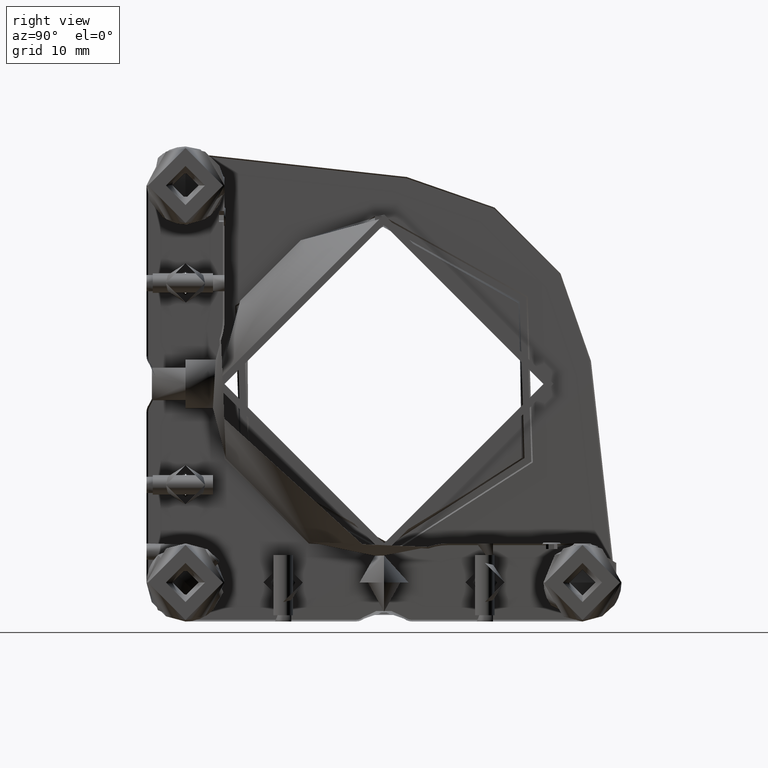
[diagram: clean part render]
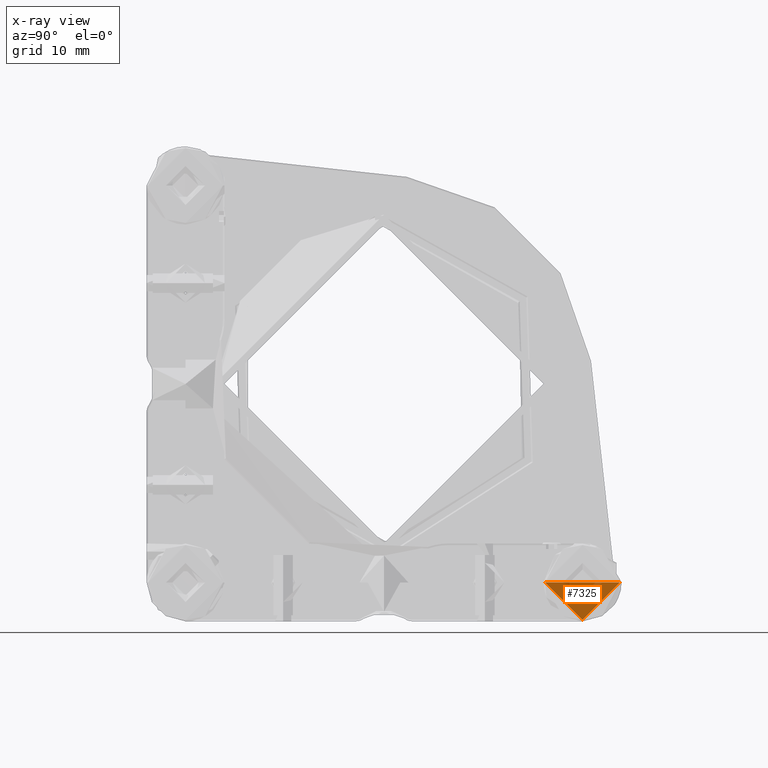
[diagram: x-ray — body ghosted, one internal face saturated and labeled with its STEP entity id]
A machine part, right view, then the same camera in x-ray: the body is ghosted and one INTERNAL B-rep face — a face not visible from any outside direction — is saturated and labeled: STEP entity #7325.
In plain terms, the highlighted planar face has unit normal (1, 0, 0).
Its self-contained STEP definition (entity closure, byte-faithful):
#150 = FACE_BOUND ( 'NONE', #18268, .T. ) ;
#166 = CARTESIAN_POINT ( 'NONE',  ( 14.52438067708581038, 33.91941970976437659, 22.71200231766244571 ) ) ;
#651 = CARTESIAN_POINT ( 'NONE',  ( 14.52438067708581215, 33.41266510792383571, 19.12536100015678997 ) ) ;
#751 = CARTESIAN_POINT ( 'NONE',  ( 14.52438067708581748, 25.98998986151763901, 17.83405550010431284 ) ) ;
#851 = CARTESIAN_POINT ( 'NONE',  ( 14.52438067708581393, 27.46949630681223553, 16.96269565801405577 ) ) ;
#946 = CARTESIAN_POINT ( 'NONE',  ( 14.52438067708581393, 24.33292862304676873, 21.50000000000000000 ) ) ;
#1010 = CARTESIAN_POINT ( 'NONE',  ( 14.52438067708581215, 25.51698412314998521, 24.69293876152804401 ) ) ;
#1049 = CARTESIAN_POINT ( 'NONE',  ( 14.52438067708581571, 26.24899507208490945, 17.62356381639167324 ) ) ;
#1213 = CARTESIAN_POINT ( 'NONE',  ( 14.52438067708581393, 24.33292862304676873, 21.50000000000000000 ) ) ;
#1423 = CARTESIAN_POINT ( 'NONE',  ( 14.52438067708581571, 25.30649243943227944, 24.43393355095571096 ) ) ;
#1454 = CARTESIAN_POINT ( 'NONE',  ( 14.52438067701677760, 30.68797895811347232, 27.10034289084593340 ) ) ;
#1640 = CARTESIAN_POINT ( 'NONE',  ( 14.52438067708581748, 30.71599245725489169, 26.10261184327362827 ) ) ;
#1698 = CARTESIAN_POINT ( 'NONE',  ( 14.52438067708581393, 34.03292862304677868, 21.50000000000000000 ) ) ;
#1768 = CARTESIAN_POINT ( 'NONE',  ( 14.52438067701677582, 34.93292862304997470, 22.25267323992297719 ) ) ;
#1943 = CARTESIAN_POINT ( 'NONE',  ( 14.52438067708581393, 33.63794655343524909, 23.41788744848536297 ) ) ;
#2314 = CARTESIAN_POINT ( 'NONE',  ( 14.52438067708580860, 26.80828962319709063, 17.27026351512473212 ) ) ;
#2411 = CARTESIAN_POINT ( 'NONE',  ( 14.52438067704439284, 23.43292862304367574, 21.50000000000000355 ) ) ;
#2417 = CARTESIAN_POINT ( 'NONE',  ( 14.52438067708581393, 31.23174659883637005, 17.10263060999756135 ) ) ;
#2517 = CARTESIAN_POINT ( 'NONE',  ( 14.52438067708581571, 27.02267360925661066, 17.15221773601624022 ) ) ;
#2618 = CARTESIAN_POINT ( 'NONE',  ( 14.52438067708582103, 24.33292862304677584, 20.88308412948451220 ) ) ;
#2789 = CARTESIAN_POINT ( 'NONE',  ( 14.52438067708581571, 27.13411064725692157, 25.89736939000365368 ) ) ;
#2843 = VERTEX_POINT ( 'NONE', #1698 ) ;
#2888 = CARTESIAN_POINT ( 'NONE',  ( 14.52438067708581571, 24.83514635906360368, 23.66025501378826590 ) ) ;
#2992 = CARTESIAN_POINT ( 'NONE',  ( 14.52438067708581393, 24.33292862304676873, 21.50000000000000000 ) ) ;
#3203 = CARTESIAN_POINT ( 'NONE',  ( 14.52438067708581215, 27.32169990835435058, 25.97869805857441960 ) ) ;
#3306 = CARTESIAN_POINT ( 'NONE',  ( 14.52438067708581393, 33.33196189190774561, 24.01694300821505124 ) ) ;
#3385 = DIRECTION ( 'NONE',  ( 1.224059984637268215E-16, 0.000000000000000000, -1.000000000000000000 ) ) ;
#3405 = CARTESIAN_POINT ( 'NONE',  ( 14.52438067708581748, 31.69862827721949117, 25.64734961785286771 ) ) ;
#3503 = CARTESIAN_POINT ( 'NONE',  ( 14.52438067708581393, 30.93230565649533048, 26.02355517262649443 ) ) ;
#3775 = CARTESIAN_POINT ( 'NONE',  ( 14.52438067708581571, 33.63215310187160156, 19.56250798600264673 ) ) ;
#3814 = CARTESIAN_POINT ( 'NONE',  ( 14.52438067701678293, 24.58484427925467131, 17.96635636014227799 ) ) ;
#3914 = CARTESIAN_POINT ( 'NONE',  ( 14.52438067701678470, 30.68797895811347587, 15.89965710915406483 ) ) ;
#3978 = CARTESIAN_POINT ( 'NONE',  ( 14.52438067708580860, 31.04415733773910446, 17.02130194142601027 ) ) ;
#4018 = CARTESIAN_POINT ( 'NONE',  ( 14.52438067701677937, 33.78101296683886545, 17.96635636014227089 ) ) ;
#4078 = CARTESIAN_POINT ( 'NONE',  ( 14.52438067708581215, 25.16830291336528447, 18.77752054822410344 ) ) ;
#4146 = CARTESIAN_POINT ( 'NONE',  ( 14.52438067708581571, 25.03557900519275137, 24.01569965417096952 ) ) ;
#4185 = CARTESIAN_POINT ( 'NONE',  ( 14.52438067708580860, 33.05936480666957067, 18.56606644905475889 ) ) ;
#4289 = CARTESIAN_POINT ( 'NONE',  ( 14.52438067708581393, 25.21688150693000807, 18.70714728069470922 ) ) ;
#4355 = CARTESIAN_POINT ( 'NONE',  ( 14.52438067708581393, 26.05731534214589118, 25.21517591766009758 ) ) ;
#4463 = CARTESIAN_POINT ( 'NONE',  ( 14.52438067708581393, 24.66592426522777970, 23.26623025729685068 ) ) ;
#4485 = CARTESIAN_POINT ( 'NONE',  ( 14.52438067701678115, 23.43292862304356561, 22.25267323992298074 ) ) ;
#4645 = CARTESIAN_POINT ( 'NONE',  ( 14.52438067708581393, 29.18292862304677016, 21.50000000000000000 ) ) ;
#4664 = CARTESIAN_POINT ( 'NONE',  ( 14.52438067708581393, 31.12042063704975448, 25.94922447882184358 ) ) ;
#4706 = CARTESIAN_POINT ( 'NONE',  ( 14.52438067704439284, 34.93292862304869573, 21.50000000000000000 ) ) ;
#4767 = CARTESIAN_POINT ( 'NONE',  ( 14.52438067708581571, 30.94915888034337570, 26.01700435781917164 ) ) ;
#4794 = CARTESIAN_POINT ( 'NONE',  ( 14.52438067701677937, 29.93560186296974734, 27.25000000000320455 ) ) ;
#4849 = PLANE ( 'NONE',  #15468 ) ;
#4967 = CARTESIAN_POINT ( 'NONE',  ( 14.52438067708581393, 33.45542130033840778, 23.80558629112001157 ) ) ;
#5071 = CARTESIAN_POINT ( 'NONE',  ( 14.52438067708581393, 33.14897573915903450, 24.29285271931071932 ) ) ;
#5339 = CARTESIAN_POINT ( 'NONE',  ( 14.52438067708581038, 33.69993298086555455, 19.73376974270269102 ) ) ;
#5446 = CARTESIAN_POINT ( 'NONE',  ( 14.52438067708580860, 33.78551466362651468, 19.96687096923859883 ) ) ;
#5540 = CARTESIAN_POINT ( 'NONE',  ( 14.52438067708581571, 32.49415820623055851, 17.95226754763083221 ) ) ;
#5642 = CARTESIAN_POINT ( 'NONE',  ( 14.52438067708581393, 31.48851491413567771, 17.22750732269203056 ) ) ;
#5811 = CARTESIAN_POINT ( 'NONE',  ( 14.52438067708581748, 26.39007590374196610, 25.46604711611724525 ) ) ;
#5848 = CARTESIAN_POINT ( 'NONE',  ( 14.52438067708581393, 27.52347579191915727, 16.94240464708864380 ) ) ;
#5950 = CARTESIAN_POINT ( 'NONE',  ( 14.52438067708581393, 27.90439024271051238, 16.81667198319536638 ) ) ;
#6040 = CARTESIAN_POINT ( 'NONE',  ( 14.52438067701677760, 26.28711948591248415, 26.52427173303979302 ) ) ;
#6052 = EDGE_CURVE ( 'NONE', #2843, #17212, #12524, .T. ) ;
#6074 = CARTESIAN_POINT ( 'NONE',  ( 14.52438067701678115, 34.93292862304998181, 20.74732676007702636 ) ) ;
#6224 = CARTESIAN_POINT ( 'NONE',  ( 14.52438067708581393, 32.89810454069694856, 24.62561328091269175 ) ) ;
#6351 = CARTESIAN_POINT ( 'NONE',  ( 14.52438067704439284, 34.93292862304869573, 21.50000000000000000 ) ) ;
#6423 = CARTESIAN_POINT ( 'NONE',  ( 14.52438067708581393, 33.68530757611942761, 23.30317362336610287 ) ) ;
#6454 = CARTESIAN_POINT ( 'NONE',  ( 14.52438067701678115, 34.78327151389271421, 23.00505033506670571 ) ) ;
#6527 = CARTESIAN_POINT ( 'NONE',  ( 14.52438067708581215, 29.94542625555357063, 26.30749313510508358 ) ) ;
#6690 = CARTESIAN_POINT ( 'NONE',  ( 14.52438067708581215, 33.70647964881172243, 19.75061248853394247 ) ) ;
#6904 = ORIENTED_EDGE ( 'NONE', *, *, #9147, .F. ) ;
#7040 = CARTESIAN_POINT ( 'NONE',  ( 14.52438067701678115, 23.58258573220083321, 19.99494966493330850 ) ) ;
#7199 = CARTESIAN_POINT ( 'NONE',  ( 14.52438067708581393, 25.31523931028752727, 18.57239128727074373 ) ) ;
#7325 = ADVANCED_FACE ( 'NONE', ( #20645, #150 ), #4849, .F. ) ;
#7408 = CARTESIAN_POINT ( 'NONE',  ( 14.52438067708581748, 24.68054966997413757, 19.69682637663321856 ) ) ;
#7896 = CARTESIAN_POINT ( 'NONE',  ( 14.52438067708580860, 27.26504117457487197, 25.95501793039633398 ) ) ;
#7983 = DIRECTION ( 'NONE',  ( 1.000000000000000000, 3.800440689669032656E-18, 1.224059984637268215E-16 ) ) ;
#8003 = CARTESIAN_POINT ( 'NONE',  ( 14.52438067708581748, 33.66162668161646820, 23.36122871470054108 ) ) ;
#8106 = CARTESIAN_POINT ( 'NONE',  ( 14.52438067708581393, 33.67718534726341062, 23.32333496981188148 ) ) ;
#8306 = CARTESIAN_POINT ( 'NONE',  ( 14.52438067708581038, 32.73066107540921621, 24.81122958319048877 ) ) ;
#8574 = CARTESIAN_POINT ( 'NONE',  ( 14.52438067708581748, 33.86621240666323729, 20.22134985413903507 ) ) ;
#8682 = CARTESIAN_POINT ( 'NONE',  ( 14.52438067708581393, 24.72791069265258912, 19.58211255152459529 ) ) ;
#8785 = CARTESIAN_POINT ( 'NONE',  ( 14.52438067708581926, 31.10081607151852623, 17.04498206960437656 ) ) ;
#8884 = EDGE_CURVE ( 'NONE', #17212, #2843, #15513, .T. ) ;
#8888 = CARTESIAN_POINT ( 'NONE',  ( 14.52438067708581393, 31.97578134235160618, 17.53395288388184170 ) ) ;
#8950 = CARTESIAN_POINT ( 'NONE',  ( 14.52438067708581038, 24.33292862304677229, 21.80827956315996374 ) ) ;
#9147 = EDGE_CURVE ( 'NONE', #9495, #15157, #18997, .T. ) ;
#9263 = CARTESIAN_POINT ( 'NONE',  ( 14.52438067708581393, 25.07775238218731317, 24.08397574215850767 ) ) ;
#9365 = CARTESIAN_POINT ( 'NONE',  ( 14.52438067708581393, 24.37549446552766597, 22.26264665320184477 ) ) ;
#9446 = EDGE_LOOP ( 'NONE', ( #9878, #6904 ) ) ;
#9476 = CARTESIAN_POINT ( 'NONE',  ( 14.52438067708581215, 33.58029801303694484, 23.54881797581294478 ) ) ;
#9495 = VERTEX_POINT ( 'NONE', #2411 ) ;
#9500 = CARTESIAN_POINT ( 'NONE',  ( 14.52438067701677404, 24.58484427925467131, 25.03364363985773267 ) ) ;
#9578 = CARTESIAN_POINT ( 'NONE',  ( 14.52438067708580682, 34.03292862304677158, 22.11691587053741870 ) ) ;
#9878 = ORIENTED_EDGE ( 'NONE', *, *, #16295, .F. ) ;
#10142 = CARTESIAN_POINT ( 'NONE',  ( 14.52438067708581215, 33.53071088703281788, 19.33974498621808635 ) ) ;
#10184 = CARTESIAN_POINT ( 'NONE',  ( 14.52438067701678293, 26.28711948591248060, 16.47572826696022830 ) ) ;
#10240 = CARTESIAN_POINT ( 'NONE',  ( 14.52438067708581571, 31.00626359285435285, 17.00574327578111067 ) ) ;
#10276 = CARTESIAN_POINT ( 'NONE',  ( 14.52438067701678115, 32.07873776018106327, 16.47572826696022474 ) ) ;
#10344 = CARTESIAN_POINT ( 'NONE',  ( 14.52438067708581393, 24.91043594574210474, 19.19441370890274712 ) ) ;
#10384 = CARTESIAN_POINT ( 'NONE',  ( 14.52438067701677937, 34.20720035608655962, 18.60419086286571400 ) ) ;
#10448 = CARTESIAN_POINT ( 'NONE',  ( 14.52438067708581393, 32.84887312294350181, 18.30706123847405209 ) ) ;
#10554 = CARTESIAN_POINT ( 'NONE',  ( 14.52438067708581571, 27.41669836575005803, 16.98299564218104862 ) ) ;
#10657 = CARTESIAN_POINT ( 'NONE',  ( 14.52438067708581215, 33.28810486390414525, 18.91602425783887398 ) ) ;
#10724 = CARTESIAN_POINT ( 'NONE',  ( 14.52438067708581215, 26.66598561484931196, 25.64903326887122859 ) ) ;
#10825 = CARTESIAN_POINT ( 'NONE',  ( 14.52438067708581748, 24.73370414422361208, 23.43749201400099125 ) ) ;
#11030 = CARTESIAN_POINT ( 'NONE',  ( 14.52438067708581571, 31.55756762289773576, 25.72973648487297638 ) ) ;
#11032 = ORIENTED_EDGE ( 'NONE', *, *, #6052, .F. ) ;
#11138 = CARTESIAN_POINT ( 'NONE',  ( 14.52438067708581038, 32.37586738458615798, 25.16594449988328819 ) ) ;
#11261 = CARTESIAN_POINT ( 'NONE',  ( 14.52438067701677937, 27.67787828798007510, 27.10034289084594405 ) ) ;
#11751 = CARTESIAN_POINT ( 'NONE',  ( 14.52438067704439284, 23.43292862304367574, 21.50000000000000355 ) ) ;
#11853 = CARTESIAN_POINT ( 'NONE',  ( 14.52438067701678115, 29.93560186296974024, 15.74999999999679723 ) ) ;
#11913 = CARTESIAN_POINT ( 'NONE',  ( 14.52438067708581215, 31.69987163124403295, 17.35096673112969867 ) ) ;
#12019 = CARTESIAN_POINT ( 'NONE',  ( 14.52438067708581393, 26.66722896887486627, 17.35265038214567568 ) ) ;
#12186 = CARTESIAN_POINT ( 'NONE',  ( 14.52438067708581393, 26.46044917126858209, 25.51462570968008237 ) ) ;
#12223 = CARTESIAN_POINT ( 'NONE',  ( 14.52438067708581748, 25.03389535417836242, 18.98305699179795880 ) ) ;
#12286 = CARTESIAN_POINT ( 'NONE',  ( 14.52438067708581038, 24.49964483943029236, 22.77865014586233983 ) ) ;
#12416 = CARTESIAN_POINT ( 'NONE',  ( 14.52438067701677937, 33.78101296683887966, 25.03364363985773267 ) ) ;
#12524 = B_SPLINE_CURVE_WITH_KNOTS ( 'NONE', 3,
 ( #13375, #18102, #19359, #8574, #5446, #16123, #19669, #6690, #5339, #3775, #10142, #651, #18200, #10657, #4185, #10448, #5540, #18301, #18402, #8888, #18715, #11913, #5642, #2417, #8785, #3978, #10240, #19968, #18611, #15164, #15062, #13574, #5950, #16828, #5848, #851, #16628, #10554, #20076, #2517, #2314, #12019, #16933, #1049, #751, #15472, #17035, #7199, #4289, #4078, #12223, #10344, #16729, #8682, #13678, #15360, #7408, #15259, #2618, #946 ),
 .UNSPECIFIED., .F., .F.,
 ( 4, 1, 1, 1, 1, 2, 2, 1, 2, 2, 2, 1, 2, 2, 1, 1, 1, 2, 2, 2, 1, 1, 1, 1, 2, 2, 1, 2, 2, 2, 1, 2, 2, 1, 1, 1, 2, 2, 4 ),
 ( -1.000000000000000000, -0.9374999999999904521, -0.9062499999999853451, -0.8906249999999831246, -0.8828124999999820144, -0.8789062499999817923, -0.8749999999999815703, -0.8437499999999852340, -0.8281249999999871214, -0.8124999999999888978, -0.7499999999999982236, -0.7187500000000022204, -0.7031250000000042188, -0.6875000000000062172, -0.6562500000000087708, -0.6406250000000099920, -0.6328125000000104361, -0.6289062500000106581, -0.6250000000000107692, -0.5000000000000099920, -0.4375000000000093259, -0.4062500000000089928, -0.3906250000000085487, -0.3828125000000085487, -0.3789062500000086597, -0.3750000000000088818, -0.3437500000000078826, -0.3281250000000073275, -0.3125000000000068834, -0.2500000000000047740, -0.2187500000000036637, -0.2031250000000034417, -0.1875000000000031086, -0.1562500000000028866, -0.1406250000000028866, -0.1328125000000029976, -0.1289062500000029976, -0.1250000000000028866, -0.000000000000000000 ),
 .UNSPECIFIED. ) ;
#12598 = CARTESIAN_POINT ( 'NONE',  ( 14.52438067708581393, 27.37976032455588182, 26.00238106179835640 ) ) ;
#12805 = CARTESIAN_POINT ( 'NONE',  ( 14.52438067708581393, 34.03292862304677868, 21.50000000000000000 ) ) ;
#12832 = CARTESIAN_POINT ( 'NONE',  ( 14.52438067704439284, 23.43292862304367574, 21.50000000000000355 ) ) ;
#12904 = CARTESIAN_POINT ( 'NONE',  ( 14.52438067708581571, 27.35959365323915193, 25.99425672421912381 ) ) ;
#13375 = CARTESIAN_POINT ( 'NONE',  ( 14.52438067708581393, 34.03292862304677868, 21.50000000000000000 ) ) ;
#13418 = CARTESIAN_POINT ( 'NONE',  ( 14.52438067701678115, 27.67787828798007155, 15.89965710915407193 ) ) ;
#13574 = CARTESIAN_POINT ( 'NONE',  ( 14.52438067708581393, 28.42043099054638944, 16.69250686489667856 ) ) ;
#13678 = CARTESIAN_POINT ( 'NONE',  ( 14.52438067708581571, 24.70423056447365440, 19.63877128530546301 ) ) ;
#13958 = CARTESIAN_POINT ( 'NONE',  ( 14.52438067708581571, 24.95319213817198190, 23.87463899984820159 ) ) ;
#14095 = CARTESIAN_POINT ( 'NONE',  ( 14.52438067701677760, 28.43025538312380718, 27.25000000000320455 ) ) ;
#14176 = CARTESIAN_POINT ( 'NONE',  ( 14.52438067708581215, 26.25531991031825285, 25.36768931275998895 ) ) ;
#14278 = CARTESIAN_POINT ( 'NONE',  ( 14.52438067708581393, 28.56653980609257815, 26.34993259704461011 ) ) ;
#14304 = CARTESIAN_POINT ( 'NONE',  ( 14.52438067701677937, 25.64928498318903749, 26.09808434379210595 ) ) ;
#14618 = ORIENTED_EDGE ( 'NONE', *, *, #8884, .F. ) ;
#15062 = CARTESIAN_POINT ( 'NONE',  ( 14.52438067708581215, 28.87473421457334766, 16.64996629852329590 ) ) ;
#15157 = VERTEX_POINT ( 'NONE', #4706 ) ;
#15164 = CARTESIAN_POINT ( 'NONE',  ( 14.52438067708581393, 29.79931743999361515, 16.65006740295337551 ) ) ;
#15259 = CARTESIAN_POINT ( 'NONE',  ( 14.52438067708581393, 24.44643753632917083, 20.28799768235946388 ) ) ;
#15322 = CARTESIAN_POINT ( 'NONE',  ( 14.52438067708581393, 24.64563237731401557, 23.21345277331744583 ) ) ;
#15360 = CARTESIAN_POINT ( 'NONE',  ( 14.52438067708581926, 24.68867189882834623, 19.67666503019126978 ) ) ;
#15468 = AXIS2_PLACEMENT_3D ( 'NONE', #4645, #7983, #3385 ) ;
#15472 = CARTESIAN_POINT ( 'NONE',  ( 14.52438067708581038, 25.63519617067920464, 18.18877041681570716 ) ) ;
#15513 = B_SPLINE_CURVE_WITH_KNOTS ( 'NONE', 3,
 ( #2992, #8950, #9365, #12286, #18679, #15755, #15322, #20145, #4463, #10825, #2888, #13958, #4146, #9263, #1423, #1010, #15642, #4355, #14176, #5811, #12186, #10724, #17103, #2789, #7896, #3203, #12904, #12598, #17724, #14278, #17513, #6527, #18985, #1640, #15860, #17618, #3503, #4767, #4664, #16058, #11030, #3405, #20560, #17411, #11138, #8306, #6224, #19399, #5071, #19293, #3306, #4967, #9476, #1943, #8003, #8106, #6423, #166, #9578, #12805 ),
 .UNSPECIFIED., .F., .F.,
 ( 4, 1, 1, 1, 1, 2, 2, 1, 2, 2, 2, 1, 2, 2, 1, 1, 1, 2, 2, 2, 1, 1, 1, 1, 2, 2, 1, 2, 2, 2, 1, 2, 2, 1, 1, 1, 2, 2, 4 ),
 ( -1.000000000000000000, -0.9374999999999878986, -0.9062499999999819034, -0.8906249999999790168, -0.8828124999999777955, -0.8789062499999775735, -0.8749999999999773515, -0.8437499999999770184, -0.8281249999999769074, -0.8124999999999766853, -0.7499999999999749090, -0.7187499999999736877, -0.7031249999999729106, -0.6874999999999721334, -0.6562499999999710232, -0.6406249999999706901, -0.6328124999999706901, -0.6289062499999706901, -0.6249999999999708011, -0.4999999999999834577, -0.4374999999999896749, -0.4062499999999928946, -0.3906249999999944489, -0.3828124999999950040, -0.3789062499999951150, -0.3749999999999953371, -0.3437499999999963363, -0.3281249999999968914, -0.3124999999999974465, -0.2500000000000014433, -0.2187500000000036637, -0.2031250000000045519, -0.1875000000000055511, -0.1562500000000076605, -0.1406250000000089928, -0.1328125000000096589, -0.1289062500000099920, -0.1250000000000104361, -0.000000000000000000 ),
 .UNSPECIFIED. ) ;
#15642 = CARTESIAN_POINT ( 'NONE',  ( 14.52438067708581748, 25.87169903986303154, 25.04773245236812329 ) ) ;
#15755 = CARTESIAN_POINT ( 'NONE',  ( 14.52438067708581215, 24.62534709300670244, 23.15948775785449953 ) ) ;
#15780 = CARTESIAN_POINT ( 'NONE',  ( 14.52438067701677760, 34.20720035608655252, 24.39580913713427890 ) ) ;
#15816 = CARTESIAN_POINT ( 'NONE',  ( 14.52438067704439284, 34.93292862304869573, 21.50000000000000000 ) ) ;
#15860 = CARTESIAN_POINT ( 'NONE',  ( 14.52438067708581571, 30.84238145417588584, 26.05759535291178253 ) ) ;
#15921 = B_SPLINE_CURVE_WITH_KNOTS ( 'NONE', 3,
 ( #6351, #1768, #6454, #15780, #12416, #20374, #20586, #1454, #4794, #14095, #11261, #6040, #14304, #9500, #18907, #18807, #4485, #12832 ),
 .UNSPECIFIED., .F., .F.,
 ( 4, 2, 2, 2, 2, 2, 2, 2, 4 ),
 ( 0.000000000000000000, 0.1250000000000000000, 0.2500000000000000000, 0.3750000000000000000, 0.5000000000000000000, 0.6250000000000000000, 0.7500000000000000000, 0.8750000000000000000, 1.000000000000000000 ),
 .UNSPECIFIED. ) ;
#16058 = CARTESIAN_POINT ( 'NONE',  ( 14.52438067708581571, 31.34318363683853548, 25.84778226398083234 ) ) ;
#16123 = CARTESIAN_POINT ( 'NONE',  ( 14.52438067708581571, 33.74051015308684498, 19.84051224214591969 ) ) ;
#16295 = EDGE_CURVE ( 'NONE', #15157, #9495, #15921, .T. ) ;
#16568 = CARTESIAN_POINT ( 'NONE',  ( 14.52438067701678293, 28.43025538312379652, 15.74999999999680078 ) ) ;
#16628 = CARTESIAN_POINT ( 'NONE',  ( 14.52438067708581393, 27.43355158959866458, 16.97644482737364058 ) ) ;
#16667 = CARTESIAN_POINT ( 'NONE',  ( 14.52438067701678470, 32.71657226290449927, 16.90191565620791181 ) ) ;
#16729 = CARTESIAN_POINT ( 'NONE',  ( 14.52438067708581215, 24.78555923304682196, 19.45118202420412601 ) ) ;
#16767 = CARTESIAN_POINT ( 'NONE',  ( 14.52438067701678115, 34.78327151389270711, 19.99494966493330494 ) ) ;
#16828 = CARTESIAN_POINT ( 'NONE',  ( 14.52438067708581393, 27.64986478884146948, 16.89738815672713557 ) ) ;
#16933 = CARTESIAN_POINT ( 'NONE',  ( 14.52438067708581393, 26.59895288088980791, 17.39482375913900469 ) ) ;
#17035 = CARTESIAN_POINT ( 'NONE',  ( 14.52438067708581748, 25.46775270538762825, 18.37438671909816890 ) ) ;
#17103 = CARTESIAN_POINT ( 'NONE',  ( 14.52438067708581393, 26.87734233195754996, 25.77249267730959659 ) ) ;
#17212 = VERTEX_POINT ( 'NONE', #1213 ) ;
#17411 = CARTESIAN_POINT ( 'NONE',  ( 14.52438067708581393, 32.11686217399611820, 25.37643618361869713 ) ) ;
#17513 = CARTESIAN_POINT ( 'NONE',  ( 14.52438067708581748, 29.49112303152387327, 26.35003370147771307 ) ) ;
#17618 = CARTESIAN_POINT ( 'NONE',  ( 14.52438067708581393, 30.89636093928219296, 26.03730434198619292 ) ) ;
#17724 = CARTESIAN_POINT ( 'NONE',  ( 14.52438067708581038, 27.97075590937756573, 26.23642360749514069 ) ) ;
#18102 = CARTESIAN_POINT ( 'NONE',  ( 14.52438067708581571, 34.03292862304678579, 21.19172043684107720 ) ) ;
#18138 = CARTESIAN_POINT ( 'NONE',  ( 14.52438067701677582, 23.43292862304355850, 20.74732676007704057 ) ) ;
#18200 = CARTESIAN_POINT ( 'NONE',  ( 14.52438067708581038, 33.33027824090223845, 18.98430034583221371 ) ) ;
#18237 = CARTESIAN_POINT ( 'NONE',  ( 14.52438067701678115, 25.64928498318903749, 16.90191565620790826 ) ) ;
#18268 = EDGE_LOOP ( 'NONE', ( #11032, #14618 ) ) ;
#18301 = CARTESIAN_POINT ( 'NONE',  ( 14.52438067708581748, 32.30854190394770598, 17.78482408233806566 ) ) ;
#18402 = CARTESIAN_POINT ( 'NONE',  ( 14.52438067708581215, 32.11053733577531233, 17.63231068723856154 ) ) ;
#18611 = CARTESIAN_POINT ( 'NONE',  ( 14.52438067708581571, 30.39510133672035508, 16.76357639250284848 ) ) ;
#18679 = CARTESIAN_POINT ( 'NONE',  ( 14.52438067708581393, 24.58034258246700787, 23.03312903076218987 ) ) ;
#18715 = CARTESIAN_POINT ( 'NONE',  ( 14.52438067708581393, 31.90540807482505770, 17.48537429031945223 ) ) ;
#18807 = CARTESIAN_POINT ( 'NONE',  ( 14.52438067701678115, 23.58258573220083321, 23.00505033506670571 ) ) ;
#18907 = CARTESIAN_POINT ( 'NONE',  ( 14.52438067701678293, 24.15865689000698779, 24.39580913713428600 ) ) ;
#18985 = CARTESIAN_POINT ( 'NONE',  ( 14.52438067708581393, 30.46146700338784896, 26.18332801680595523 ) ) ;
#18997 = B_SPLINE_CURVE_WITH_KNOTS ( 'NONE', 3,
 ( #11751, #18138, #7040, #19910, #3814, #18237, #10184, #13418, #16568, #11853, #3914, #10276, #16667, #4018, #10384, #16767, #6074, #15816 ),
 .UNSPECIFIED., .F., .F.,
 ( 4, 2, 2, 2, 2, 2, 2, 2, 4 ),
 ( 0.000000000000000000, 0.1250000000000000000, 0.2500000000000000000, 0.3750000000000000000, 0.5000000000000000000, 0.6250000000000000000, 0.7500000000000000000, 0.8750000000000000000, 1.000000000000000000 ),
 .UNSPECIFIED. ) ;
#19293 = CARTESIAN_POINT ( 'NONE',  ( 14.52438067708581215, 33.19755433273198264, 24.22247945176939510 ) ) ;
#19359 = CARTESIAN_POINT ( 'NONE',  ( 14.52438067708581393, 33.99036278056588145, 20.73735334679999553 ) ) ;
#19399 = CARTESIAN_POINT ( 'NONE',  ( 14.52438067708581215, 33.05061793579896801, 24.42760871273779344 ) ) ;
#19669 = CARTESIAN_POINT ( 'NONE',  ( 14.52438067708581571, 33.72022486877952474, 19.78654722668281352 ) ) ;
#19910 = CARTESIAN_POINT ( 'NONE',  ( 14.52438067701677404, 24.15865689000698424, 18.60419086286571755 ) ) ;
#19968 = CARTESIAN_POINT ( 'NONE',  ( 14.52438067708581571, 30.98609692153753414, 16.99761893820172176 ) ) ;
#20076 = CARTESIAN_POINT ( 'NONE',  ( 14.52438067708581571, 27.24543660904470954, 17.05077552117648665 ) ) ;
#20145 = CARTESIAN_POINT ( 'NONE',  ( 14.52438067708581215, 24.65937759728181078, 23.24938751146617832 ) ) ;
#20374 = CARTESIAN_POINT ( 'NONE',  ( 14.52438067701677760, 32.71657226290451348, 26.09808434379209885 ) ) ;
#20560 = CARTESIAN_POINT ( 'NONE',  ( 14.52438067708581571, 31.76690436520686944, 25.60517624085840538 ) ) ;
#20586 = CARTESIAN_POINT ( 'NONE',  ( 14.52438067701677937, 32.07873776018107037, 26.52427173303978236 ) ) ;
#20645 = FACE_OUTER_BOUND ( 'NONE', #9446, .T. ) ;